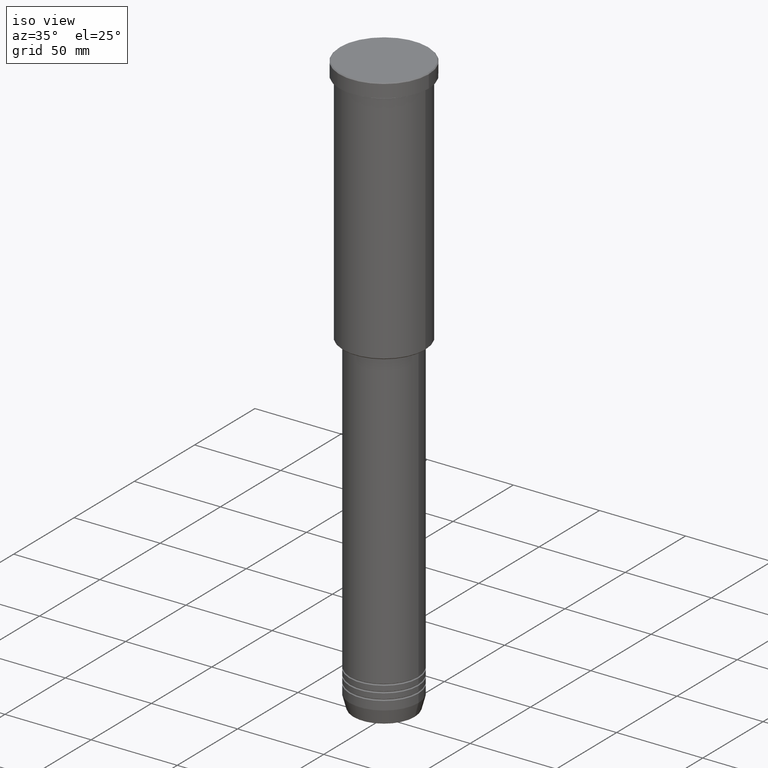
[diagram: clean part render]
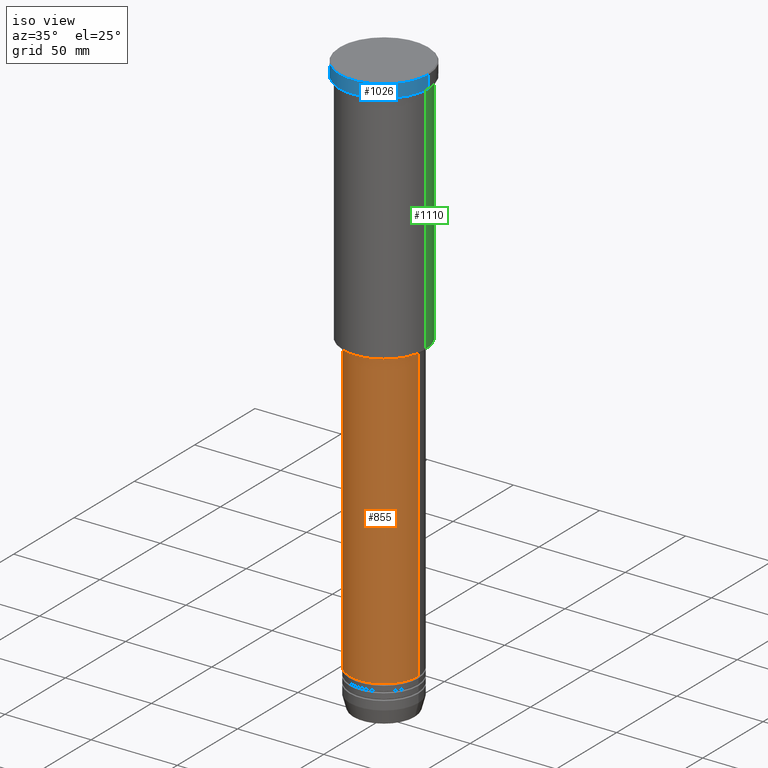
[diagram: same view with three faces highlighted in distinct colors, each labeled with its STEP entity id]
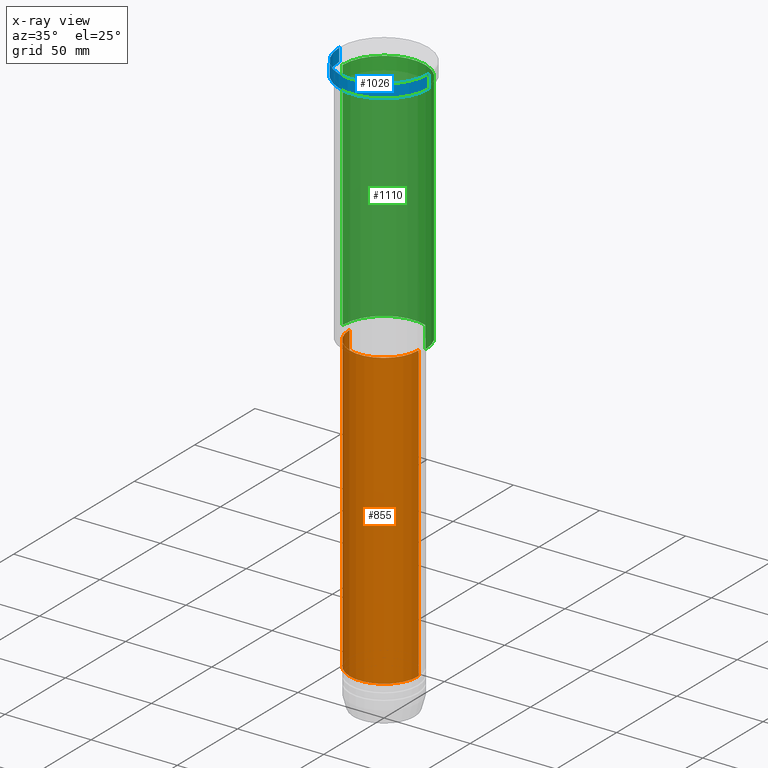
[diagram: x-ray of the same camera — body ghosted, the three highlighted faces saturated]
A machine part, iso view with three faces highlighted in distinct colors.
The next image is the same camera in x-ray (body ghosted, the three faces saturated) — at least one of them is partly hidden behind the body in this view.
Their STEP definitions:

[orange] entity #855 — the highlighted cylindrical surface (partial cylindrical patch) has radius 20 mm, axis along (-0, -0, 1).
#52 = CARTESIAN_POINT ( 'NONE',  ( 0.000000000000000000, 0.000000000000000000, 0.000000000000000000 ) ) ;
#77 = ORIENTED_EDGE ( 'NONE', *, *, #1034, .F. ) ;
#79 = LINE ( 'NONE', #712, #570 ) ;
#91 = CARTESIAN_POINT ( 'NONE',  ( -20.00000000000000355, 2.449293598294706907E-15, -146.9999999999999147 ) ) ;
#136 = CYLINDRICAL_SURFACE ( 'NONE', #218, 20.00000000000000355 ) ;
#140 = CARTESIAN_POINT ( 'NONE',  ( 20.00000000000000355, 0.000000000000000000, -318.0000000000000568 ) ) ;
#215 = CARTESIAN_POINT ( 'NONE',  ( 20.00000000000000355, 0.000000000000000000, -146.9999999999999147 ) ) ;
#218 = AXIS2_PLACEMENT_3D ( 'NONE', #52, #491, #411 ) ;
#226 = FACE_OUTER_BOUND ( 'NONE', #946, .T. ) ;
#312 = CIRCLE ( 'NONE', #442, 20.00000000000000355 ) ;
#318 = ORIENTED_EDGE ( 'NONE', *, *, #1091, .T. ) ;
#336 = CARTESIAN_POINT ( 'NONE',  ( -20.00000000000000355, 2.449293598294706907E-15, -318.0000000000000568 ) ) ;
#337 = CARTESIAN_POINT ( 'NONE',  ( 0.000000000000000000, 0.000000000000000000, -318.0000000000000568 ) ) ;
#375 = VERTEX_POINT ( 'NONE', #91 ) ;
#411 = DIRECTION ( 'NONE',  ( 1.000000000000000000, 0.000000000000000000, 0.000000000000000000 ) ) ;
#412 = DIRECTION ( 'NONE',  ( -0.000000000000000000, -0.000000000000000000, 1.000000000000000000 ) ) ;
#431 = CARTESIAN_POINT ( 'NONE',  ( -20.00000000000000355, 2.449293598294706907E-15, 0.000000000000000000 ) ) ;
#435 = VERTEX_POINT ( 'NONE', #140 ) ;
#442 = AXIS2_PLACEMENT_3D ( 'NONE', #929, #923, #1005 ) ;
#491 = DIRECTION ( 'NONE',  ( -0.000000000000000000, -0.000000000000000000, 1.000000000000000000 ) ) ;
#570 = VECTOR ( 'NONE', #1056, 1000.000000000000000 ) ;
#607 = EDGE_CURVE ( 'NONE', #375, #854, #312, .T. ) ;
#632 = DIRECTION ( 'NONE',  ( 1.000000000000000000, 0.000000000000000000, 0.000000000000000000 ) ) ;
#683 = AXIS2_PLACEMENT_3D ( 'NONE', #337, #412, #632 ) ;
#712 = CARTESIAN_POINT ( 'NONE',  ( 20.00000000000000355, 0.000000000000000000, 0.000000000000000000 ) ) ;
#854 = VERTEX_POINT ( 'NONE', #215 ) ;
#855 = ADVANCED_FACE ( 'NONE', ( #226 ), #136, .T. ) ;
#885 = DIRECTION ( 'NONE',  ( -0.000000000000000000, -0.000000000000000000, 1.000000000000000000 ) ) ;
#902 = ORIENTED_EDGE ( 'NONE', *, *, #909, .T. ) ;
#909 = EDGE_CURVE ( 'NONE', #1083, #435, #1079, .T. ) ;
#923 = DIRECTION ( 'NONE',  ( -0.000000000000000000, -0.000000000000000000, 1.000000000000000000 ) ) ;
#929 = CARTESIAN_POINT ( 'NONE',  ( 0.000000000000000000, 0.000000000000000000, -146.9999999999999147 ) ) ;
#946 = EDGE_LOOP ( 'NONE', ( #77, #902, #318, #1030 ) ) ;
#982 = LINE ( 'NONE', #431, #1156 ) ;
#1005 = DIRECTION ( 'NONE',  ( 1.000000000000000000, 0.000000000000000000, 0.000000000000000000 ) ) ;
#1030 = ORIENTED_EDGE ( 'NONE', *, *, #607, .F. ) ;
#1034 = EDGE_CURVE ( 'NONE', #1083, #375, #982, .T. ) ;
#1056 = DIRECTION ( 'NONE',  ( -0.000000000000000000, -0.000000000000000000, 1.000000000000000000 ) ) ;
#1079 = CIRCLE ( 'NONE', #683, 20.00000000000000355 ) ;
#1083 = VERTEX_POINT ( 'NONE', #336 ) ;
#1091 = EDGE_CURVE ( 'NONE', #435, #854, #79, .T. ) ;
#1156 = VECTOR ( 'NONE', #885, 1000.000000000000000 ) ;

[blue] entity #1026 — the highlighted cylindrical surface (partial cylindrical patch) has radius 26 mm, axis along (-0, -0, 1).
#51 = CIRCLE ( 'NONE', #445, 26.00000000000000000 ) ;
#57 = DIRECTION ( 'NONE',  ( -0.000000000000000000, -0.000000000000000000, 1.000000000000000000 ) ) ;
#60 = CARTESIAN_POINT ( 'NONE',  ( 26.00000000000000000, 0.000000000000000000, 0.000000000000000000 ) ) ;
#64 = CARTESIAN_POINT ( 'NONE',  ( -26.00000000000000000, 3.184081677783118191E-15, 0.000000000000000000 ) ) ;
#70 = VECTOR ( 'NONE', #550, 1000.000000000000000 ) ;
#81 = EDGE_CURVE ( 'NONE', #179, #278, #51, .T. ) ;
#121 = ORIENTED_EDGE ( 'NONE', *, *, #280, .T. ) ;
#155 = CARTESIAN_POINT ( 'NONE',  ( 0.000000000000000000, 0.000000000000000000, -7.999999999999992895 ) ) ;
#179 = VERTEX_POINT ( 'NONE', #413 ) ;
#198 = EDGE_LOOP ( 'NONE', ( #737, #597, #121, #418 ) ) ;
#209 = VERTEX_POINT ( 'NONE', #708 ) ;
#243 = CARTESIAN_POINT ( 'NONE',  ( -26.00000000000000000, 3.184081677783118191E-15, -0.4999999999999692468 ) ) ;
#263 = VERTEX_POINT ( 'NONE', #529 ) ;
#275 = AXIS2_PLACEMENT_3D ( 'NONE', #155, #324, #784 ) ;
#278 = VERTEX_POINT ( 'NONE', #243 ) ;
#280 = EDGE_CURVE ( 'NONE', #209, #179, #633, .T. ) ;
#321 = FACE_OUTER_BOUND ( 'NONE', #198, .T. ) ;
#324 = DIRECTION ( 'NONE',  ( -0.000000000000000000, -0.000000000000000000, 1.000000000000000000 ) ) ;
#397 = DIRECTION ( 'NONE',  ( 1.000000000000000000, 0.000000000000000000, 0.000000000000000000 ) ) ;
#413 = CARTESIAN_POINT ( 'NONE',  ( 26.00000000000000000, 0.000000000000000000, -0.4999999999999692468 ) ) ;
#418 = ORIENTED_EDGE ( 'NONE', *, *, #81, .T. ) ;
#445 = AXIS2_PLACEMENT_3D ( 'NONE', #670, #860, #397 ) ;
#526 = DIRECTION ( 'NONE',  ( 1.000000000000000000, 0.000000000000000000, 0.000000000000000000 ) ) ;
#529 = CARTESIAN_POINT ( 'NONE',  ( -26.00000000000000000, 3.184081677783118191E-15, -7.999999999999992895 ) ) ;
#550 = DIRECTION ( 'NONE',  ( -0.000000000000000000, -0.000000000000000000, 1.000000000000000000 ) ) ;
#571 = VECTOR ( 'NONE', #999, 1000.000000000000000 ) ;
#597 = ORIENTED_EDGE ( 'NONE', *, *, #1019, .T. ) ;
#614 = LINE ( 'NONE', #64, #70 ) ;
#615 = CARTESIAN_POINT ( 'NONE',  ( 0.000000000000000000, 0.000000000000000000, 0.000000000000000000 ) ) ;
#633 = LINE ( 'NONE', #60, #571 ) ;
#670 = CARTESIAN_POINT ( 'NONE',  ( 0.000000000000000000, 0.000000000000000000, -0.4999999999999692468 ) ) ;
#686 = AXIS2_PLACEMENT_3D ( 'NONE', #615, #57, #526 ) ;
#698 = CYLINDRICAL_SURFACE ( 'NONE', #686, 26.00000000000000000 ) ;
#708 = CARTESIAN_POINT ( 'NONE',  ( 26.00000000000000000, 0.000000000000000000, -7.999999999999992895 ) ) ;
#737 = ORIENTED_EDGE ( 'NONE', *, *, #819, .F. ) ;
#784 = DIRECTION ( 'NONE',  ( 1.000000000000000000, 0.000000000000000000, 0.000000000000000000 ) ) ;
#794 = CIRCLE ( 'NONE', #275, 26.00000000000000000 ) ;
#819 = EDGE_CURVE ( 'NONE', #263, #278, #614, .T. ) ;
#860 = DIRECTION ( 'NONE',  ( 0.000000000000000000, 0.000000000000000000, -1.000000000000000000 ) ) ;
#999 = DIRECTION ( 'NONE',  ( -0.000000000000000000, -0.000000000000000000, 1.000000000000000000 ) ) ;
#1019 = EDGE_CURVE ( 'NONE', #263, #209, #794, .T. ) ;
#1026 = ADVANCED_FACE ( 'NONE', ( #321 ), #698, .T. ) ;

[green] entity #1110 — the highlighted cylindrical surface (partial cylindrical patch) has radius 24 mm, axis along (-0, -0, 1).
#72 = CARTESIAN_POINT ( 'NONE',  ( 24.00000000000000000, 0.000000000000000000, 0.000000000000000000 ) ) ;
#97 = CARTESIAN_POINT ( 'NONE',  ( -24.00000000000000000, 2.939152317953647894E-15, -145.5000000000000000 ) ) ;
#132 = VECTOR ( 'NONE', #1148, 1000.000000000000000 ) ;
#133 = CIRCLE ( 'NONE', #593, 24.00000000000000000 ) ;
#143 = DIRECTION ( 'NONE',  ( -0.000000000000000000, -0.000000000000000000, 1.000000000000000000 ) ) ;
#151 = CYLINDRICAL_SURFACE ( 'NONE', #856, 24.00000000000000000 ) ;
#214 = VERTEX_POINT ( 'NONE', #785 ) ;
#288 = VERTEX_POINT ( 'NONE', #423 ) ;
#301 = EDGE_CURVE ( 'NONE', #288, #1170, #133, .T. ) ;
#357 = ORIENTED_EDGE ( 'NONE', *, *, #646, .T. ) ;
#408 = VERTEX_POINT ( 'NONE', #97 ) ;
#423 = CARTESIAN_POINT ( 'NONE',  ( 24.00000000000000000, 0.000000000000000000, -8.999999999999994671 ) ) ;
#468 = EDGE_LOOP ( 'NONE', ( #357, #802, #849, #654 ) ) ;
#499 = DIRECTION ( 'NONE',  ( 1.000000000000000000, 0.000000000000000000, 0.000000000000000000 ) ) ;
#505 = VECTOR ( 'NONE', #900, 1000.000000000000000 ) ;
#561 = DIRECTION ( 'NONE',  ( -0.000000000000000000, -0.000000000000000000, 1.000000000000000000 ) ) ;
#572 = DIRECTION ( 'NONE',  ( 1.000000000000000000, 0.000000000000000000, 0.000000000000000000 ) ) ;
#593 = AXIS2_PLACEMENT_3D ( 'NONE', #1007, #1086, #572 ) ;
#602 = FACE_OUTER_BOUND ( 'NONE', #468, .T. ) ;
#606 = LINE ( 'NONE', #971, #505 ) ;
#646 = EDGE_CURVE ( 'NONE', #214, #408, #835, .T. ) ;
#654 = ORIENTED_EDGE ( 'NONE', *, *, #1071, .F. ) ;
#736 = DIRECTION ( 'NONE',  ( -1.000000000000000000, 0.000000000000000000, 0.000000000000000000 ) ) ;
#785 = CARTESIAN_POINT ( 'NONE',  ( 24.00000000000000000, 0.000000000000000000, -145.5000000000000000 ) ) ;
#790 = AXIS2_PLACEMENT_3D ( 'NONE', #824, #561, #736 ) ;
#802 = ORIENTED_EDGE ( 'NONE', *, *, #1076, .T. ) ;
#824 = CARTESIAN_POINT ( 'NONE',  ( 0.000000000000000000, 0.000000000000000000, -145.5000000000000000 ) ) ;
#835 = CIRCLE ( 'NONE', #790, 24.00000000000000000 ) ;
#849 = ORIENTED_EDGE ( 'NONE', *, *, #301, .F. ) ;
#856 = AXIS2_PLACEMENT_3D ( 'NONE', #967, #143, #499 ) ;
#874 = LINE ( 'NONE', #72, #132 ) ;
#900 = DIRECTION ( 'NONE',  ( -0.000000000000000000, -0.000000000000000000, 1.000000000000000000 ) ) ;
#967 = CARTESIAN_POINT ( 'NONE',  ( 0.000000000000000000, 0.000000000000000000, 0.000000000000000000 ) ) ;
#971 = CARTESIAN_POINT ( 'NONE',  ( -24.00000000000000000, 2.939152317953647894E-15, 0.000000000000000000 ) ) ;
#1007 = CARTESIAN_POINT ( 'NONE',  ( 0.000000000000000000, 0.000000000000000000, -8.999999999999994671 ) ) ;
#1071 = EDGE_CURVE ( 'NONE', #214, #288, #874, .T. ) ;
#1076 = EDGE_CURVE ( 'NONE', #408, #1170, #606, .T. ) ;
#1086 = DIRECTION ( 'NONE',  ( -0.000000000000000000, -0.000000000000000000, 1.000000000000000000 ) ) ;
#1110 = ADVANCED_FACE ( 'NONE', ( #602 ), #151, .T. ) ;
#1148 = DIRECTION ( 'NONE',  ( -0.000000000000000000, -0.000000000000000000, 1.000000000000000000 ) ) ;
#1170 = VERTEX_POINT ( 'NONE', #1172 ) ;
#1172 = CARTESIAN_POINT ( 'NONE',  ( -24.00000000000000000, 2.939152317953647894E-15, -8.999999999999994671 ) ) ;